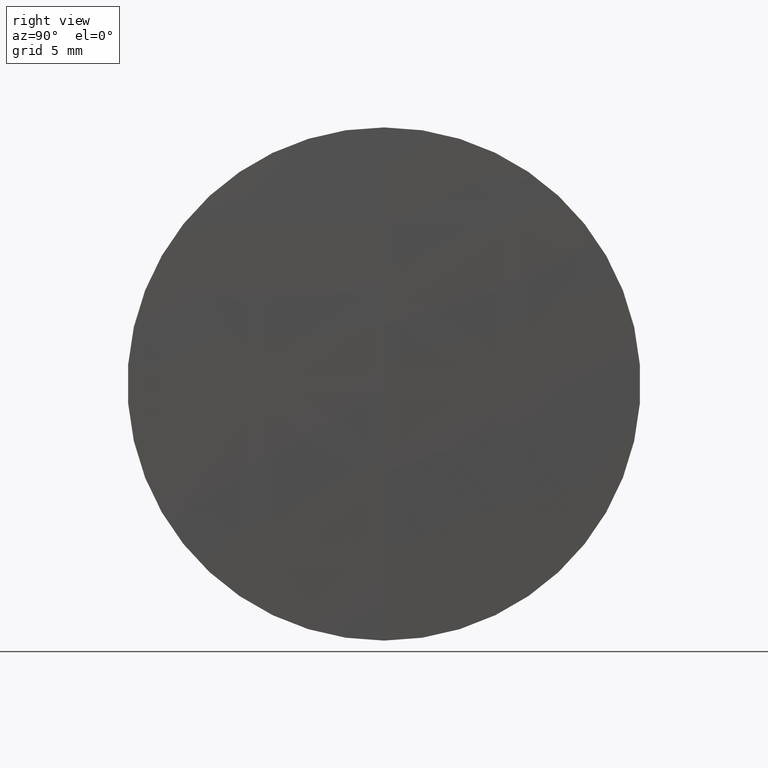
[diagram: clean part render]
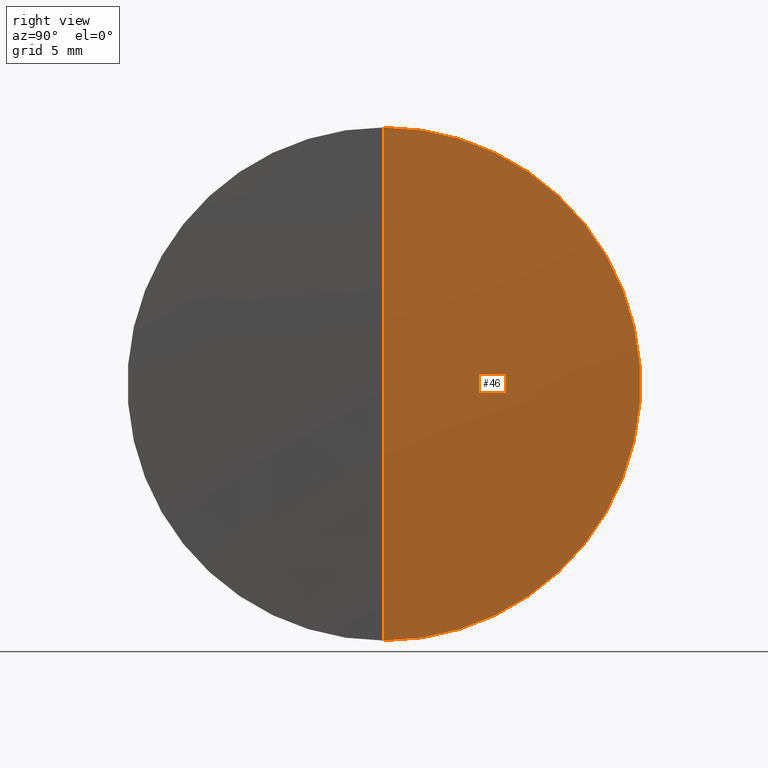
[diagram: same view with one face highlighted and labeled with its STEP entity id]
A machine part, right view. The second image highlights one B-rep face of the part: STEP entity #46.
In plain terms, the highlighted spherical surface has radius 535.82 mm.
Its self-contained STEP definition (entity closure, byte-faithful):
#20 = ORIENTED_EDGE ( 'NONE', *, *, #186, .T. ) ;
#30 = DIRECTION ( 'NONE',  ( 0.0000000000000000000, 0.0000000000000000000, 1.000000000000000000 ) ) ;
#37 = VERTEX_POINT ( 'NONE', #164 ) ;
#43 = DIRECTION ( 'NONE',  ( 0.0000000000000000000, 0.0000000000000000000, -1.000000000000000000 ) ) ;
#46 = ADVANCED_FACE ( 'NONE', ( #188 ), #110, .T. ) ;
#56 = DIRECTION ( 'NONE',  ( 0.0000000000000000000, -1.224646799147353500E-016, 1.000000000000000000 ) ) ;
#73 = CIRCLE ( 'NONE', #167, 535.8200000000000500 ) ;
#92 = ORIENTED_EDGE ( 'NONE', *, *, #227, .F. ) ;
#110 = SPHERICAL_SURFACE ( 'NONE', #214, 535.8200000000000500 ) ;
#126 = DIRECTION ( 'NONE',  ( -1.000000000000000000, -0.0000000000000000000, -0.0000000000000000000 ) ) ;
#131 = VERTEX_POINT ( 'NONE', #203 ) ;
#140 = DIRECTION ( 'NONE',  ( 0.0000000000000000000, 0.0000000000000000000, 1.000000000000000000 ) ) ;
#149 = ORIENTED_EDGE ( 'NONE', *, *, #249, .F. ) ;
#159 = CIRCLE ( 'NONE', #263, 535.8200000000000500 ) ;
#160 = CARTESIAN_POINT ( 'NONE',  ( -356.5503310264253400, 0.0000000000000000000, 0.0000000000000000000 ) ) ;
#164 = CARTESIAN_POINT ( 'NONE',  ( 179.2696689735747100, 0.0000000000000000000, 3.280951239595674800E-014 ) ) ;
#167 = AXIS2_PLACEMENT_3D ( 'NONE', #160, #285, #43 ) ;
#181 = CARTESIAN_POINT ( 'NONE',  ( 179.1238445691506900, 0.0000000000000000000, 0.0000000000000000000 ) ) ;
#186 = EDGE_CURVE ( 'NONE', #37, #281, #159, .T. ) ;
#188 = FACE_OUTER_BOUND ( 'NONE', #225, .T. ) ;
#189 = DIRECTION ( 'NONE',  ( -0.0000000000000000000, 1.000000000000000000, 1.224646799147353200E-016 ) ) ;
#203 = CARTESIAN_POINT ( 'NONE',  ( 179.1238445691506900, 0.0000000000000000000, 12.50000000000000900 ) ) ;
#214 = AXIS2_PLACEMENT_3D ( 'NONE', #320, #290, #30 ) ;
#225 = EDGE_LOOP ( 'NONE', ( #149, #20, #92 ) ) ;
#227 = EDGE_CURVE ( 'NONE', #131, #281, #279, .T. ) ;
#238 = CARTESIAN_POINT ( 'NONE',  ( 179.1238445691506900, 1.530808498934195700E-015, -12.50000000000000900 ) ) ;
#249 = EDGE_CURVE ( 'NONE', #37, #131, #73, .T. ) ;
#263 = AXIS2_PLACEMENT_3D ( 'NONE', #333, #189, #56 ) ;
#279 = CIRCLE ( 'NONE', #322, 12.50000000000000900 ) ;
#281 = VERTEX_POINT ( 'NONE', #238 ) ;
#285 = DIRECTION ( 'NONE',  ( 0.0000000000000000000, -1.000000000000000000, 0.0000000000000000000 ) ) ;
#290 = DIRECTION ( 'NONE',  ( 0.0000000000000000000, 1.000000000000000000, 0.0000000000000000000 ) ) ;
#320 = CARTESIAN_POINT ( 'NONE',  ( -356.5503310264253400, 0.0000000000000000000, 0.0000000000000000000 ) ) ;
#322 = AXIS2_PLACEMENT_3D ( 'NONE', #181, #126, #140 ) ;
#333 = CARTESIAN_POINT ( 'NONE',  ( -356.5503310264253400, 0.0000000000000000000, 0.0000000000000000000 ) ) ;